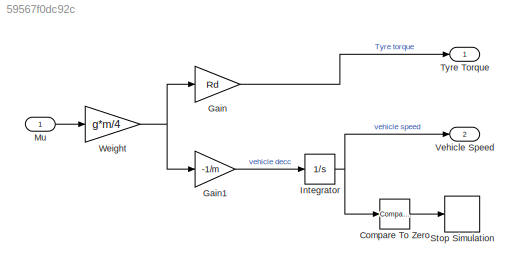
MODEL slx_59567f0dc92c
KIND model
BLOCK [Reference] Compare To Zero  REF=simulink/Logic and Bit
Operations/Compare
To Zero
  OutDataTypeStr = boolean
  Ports = [1, 1]
  SourceBlock = simulink/Logic and Bit\nOperations/Compare\nTo Zero
  SourceType = Compare To Zero
  ZeroCross = on
  relop = <=
BLOCK [Gain] Gain
  Gain = Rd
  OutDataTypeStr = Inherit: Inherit via internal rule
  ParamDataTypeStr = Inherit: Inherit via internal rule
  SaturateOnIntegerOverflow = off
BLOCK [Gain] Gain1
  Gain = -1/m
  OutDataTypeStr = Inherit: Inherit via internal rule
  ParamDataTypeStr = Inherit: Inherit via internal rule
  SaturateOnIntegerOverflow = off
BLOCK [Integrator] Integrator
  InitialCondition = v0
  Ports = [1, 1]
BLOCK [Inport] Mu
  IconDisplay = Port number
BLOCK [Stop] Stop Simulation
BLOCK [Outport] Tyre Torque
  IconDisplay = Port number
BLOCK [Outport] Vehicle Speed
  IconDisplay = Port number
  Port = 2
BLOCK [Gain] Weight
  Gain = g*m/4
  OutDataTypeStr = Inherit: Inherit via internal rule
  ParamDataTypeStr = Inherit: Inherit via internal rule
  SaturateOnIntegerOverflow = off
LINE Compare To Zero:1 -> Stop Simulation:1
LINE Gain1:1 -> Integrator:1
LINE Gain:1 -> Tyre Torque:1
NET Integrator:1 -> Compare To Zero:1, Vehicle Speed:1
LINE Mu:1 -> Weight:1
NET Weight:1 -> Gain1:1, Gain:1
note: NET lines group one-source signal fan-out (src -> all destinations, sorted); 1:1 wires keep LINE
